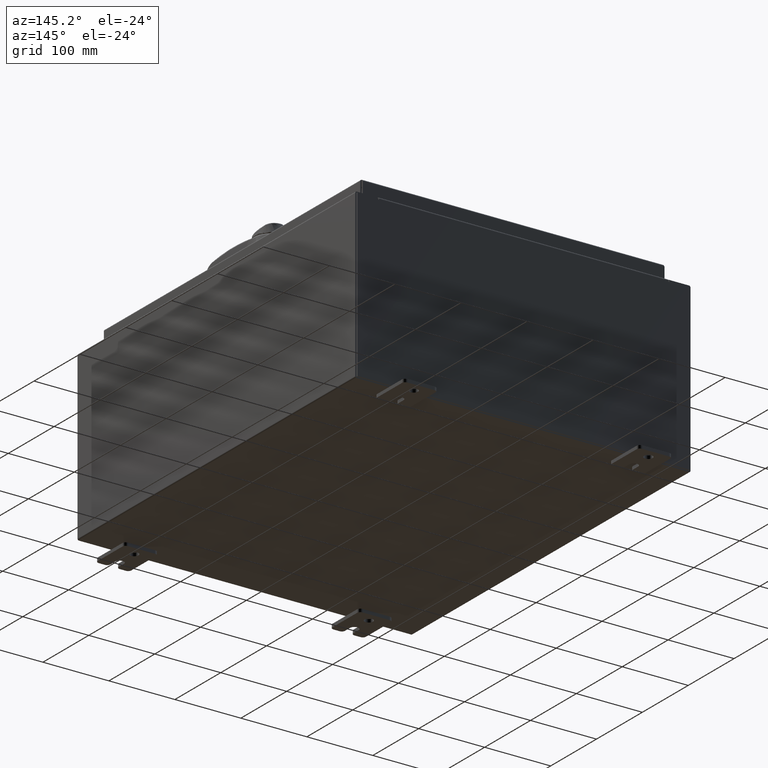
[diagram: clean part render]
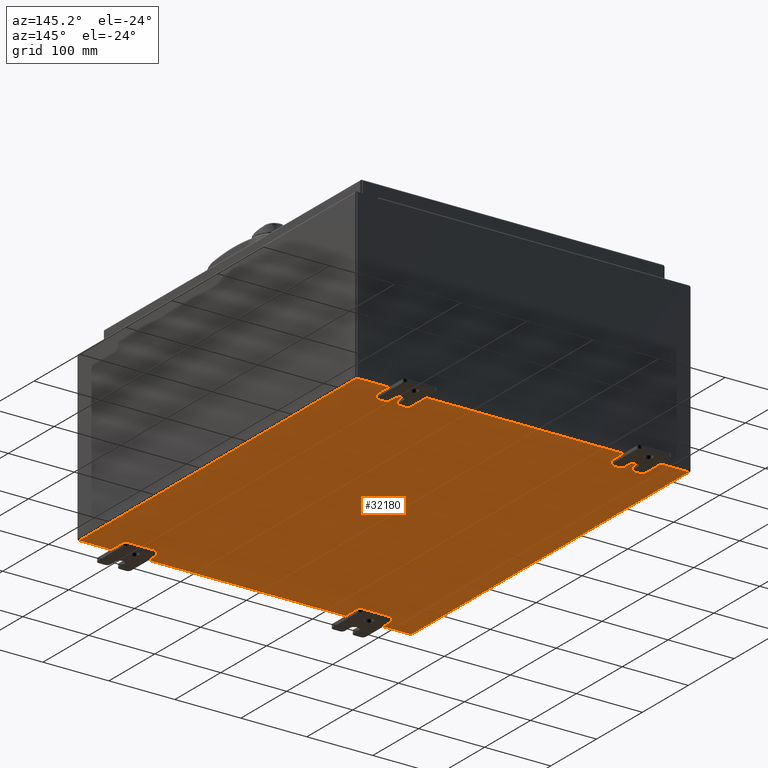
[diagram: same view with one face highlighted and labeled with its STEP entity id]
A machine part, auxiliary view. The second image highlights one B-rep face of the part: STEP entity #32180.
In plain terms, the highlighted planar face has unit normal (0, 0, -1).
Its self-contained STEP definition (entity closure, byte-faithful):
#2968 = LINE ( 'NONE', #44469, #70139 ) ;
#9614 = DIRECTION ( 'NONE',  ( -0.0000000000000000000, -1.000000000000000000, -0.0000000000000000000 ) ) ;
#10563 = PLANE ( 'NONE',  #96178 ) ;
#16029 = EDGE_CURVE ( 'NONE', #19059, #21901, #42061, .T. ) ;
#18279 = DIRECTION ( 'NONE',  ( 1.000000000000000000, 0.0000000000000000000, 0.0000000000000000000 ) ) ;
#19059 = VERTEX_POINT ( 'NONE', #41259 ) ;
#20686 = ORIENTED_EDGE ( 'NONE', *, *, #16029, .F. ) ;
#21901 = VERTEX_POINT ( 'NONE', #39696 ) ;
#28130 = CARTESIAN_POINT ( 'NONE',  ( 0.0000000000000000000, 0.0000000000000000000, -0.07470000000000000300 ) ) ;
#30438 = VECTOR ( 'NONE', #92302, 39.37007874015748100 ) ;
#32180 = ADVANCED_FACE ( 'NONE', ( #99169 ), #10563, .T. ) ;
#33635 = EDGE_CURVE ( 'NONE', #85603, #56418, #77045, .T. ) ;
#36923 = DIRECTION ( 'NONE',  ( -1.000000000000000000, 0.0000000000000000000, -0.0000000000000000000 ) ) ;
#39696 = CARTESIAN_POINT ( 'NONE',  ( 9.912300000000000100, -11.92530000000000000, -0.07470000000000000300 ) ) ;
#41259 = CARTESIAN_POINT ( 'NONE',  ( -9.912300000000000100, -11.92529999999999800, -0.07469999999999994700 ) ) ;
#42061 = LINE ( 'NONE', #88435, #109226 ) ;
#42872 = EDGE_CURVE ( 'NONE', #85603, #21901, #2968, .T. ) ;
#44469 = CARTESIAN_POINT ( 'NONE',  ( 9.912300000000000100, 11.92530000000000000, -0.07469999999999994700 ) ) ;
#50339 = ORIENTED_EDGE ( 'NONE', *, *, #33635, .F. ) ;
#51448 = CARTESIAN_POINT ( 'NONE',  ( 9.912300000000000100, 11.92529999999999800, -0.07469999999999994700 ) ) ;
#53419 = LINE ( 'NONE', #92860, #56099 ) ;
#56099 = VECTOR ( 'NONE', #101691, 39.37007874015748100 ) ;
#56418 = VERTEX_POINT ( 'NONE', #89455 ) ;
#70139 = VECTOR ( 'NONE', #9614, 39.37007874015748100 ) ;
#73220 = EDGE_LOOP ( 'NONE', ( #20686, #74460, #50339, #98955 ) ) ;
#74460 = ORIENTED_EDGE ( 'NONE', *, *, #96364, .T. ) ;
#77045 = LINE ( 'NONE', #83150, #30438 ) ;
#83150 = CARTESIAN_POINT ( 'NONE',  ( -10.00000000000000000, 11.92530000000000000, -0.07470000000000000300 ) ) ;
#85603 = VERTEX_POINT ( 'NONE', #51448 ) ;
#88435 = CARTESIAN_POINT ( 'NONE',  ( -10.00000000000000000, -11.92530000000000000, -0.07470000000000000300 ) ) ;
#89455 = CARTESIAN_POINT ( 'NONE',  ( -9.912300000000000100, 11.92530000000000000, -0.07470000000000000300 ) ) ;
#89463 = DIRECTION ( 'NONE',  ( 0.0000000000000000000, 0.0000000000000000000, -1.000000000000000000 ) ) ;
#92302 = DIRECTION ( 'NONE',  ( -1.000000000000000000, -0.0000000000000000000, -0.0000000000000000000 ) ) ;
#92860 = CARTESIAN_POINT ( 'NONE',  ( -9.912300000000000100, -11.92530000000000000, -0.07469999999999994700 ) ) ;
#96178 = AXIS2_PLACEMENT_3D ( 'NONE', #28130, #89463, #36923 ) ;
#96364 = EDGE_CURVE ( 'NONE', #19059, #56418, #53419, .T. ) ;
#98955 = ORIENTED_EDGE ( 'NONE', *, *, #42872, .T. ) ;
#99169 = FACE_OUTER_BOUND ( 'NONE', #73220, .T. ) ;
#101691 = DIRECTION ( 'NONE',  ( -0.0000000000000000000, 1.000000000000000000, -0.0000000000000000000 ) ) ;
#109226 = VECTOR ( 'NONE', #18279, 39.37007874015748100 ) ;